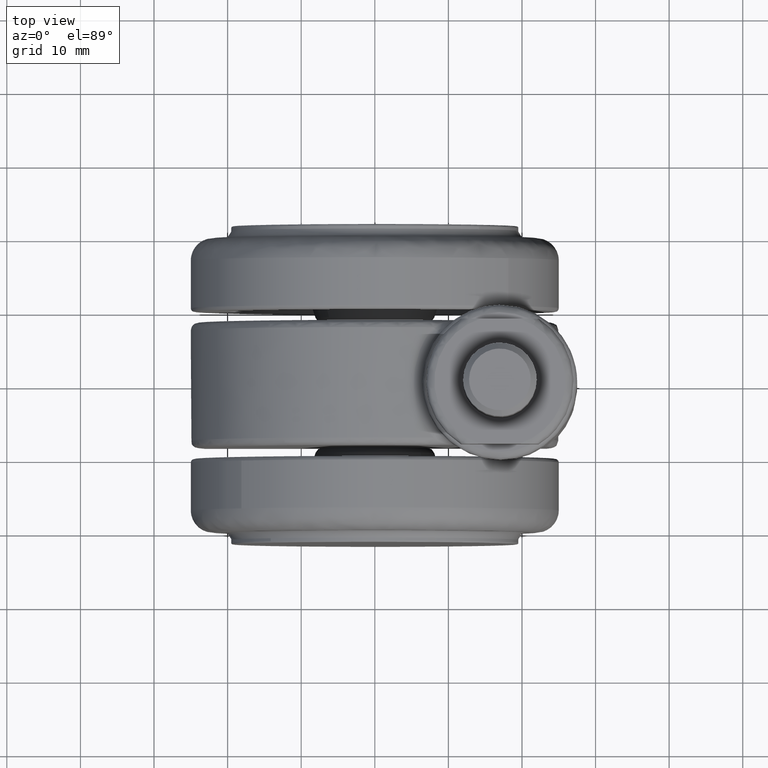
[diagram: clean part render]
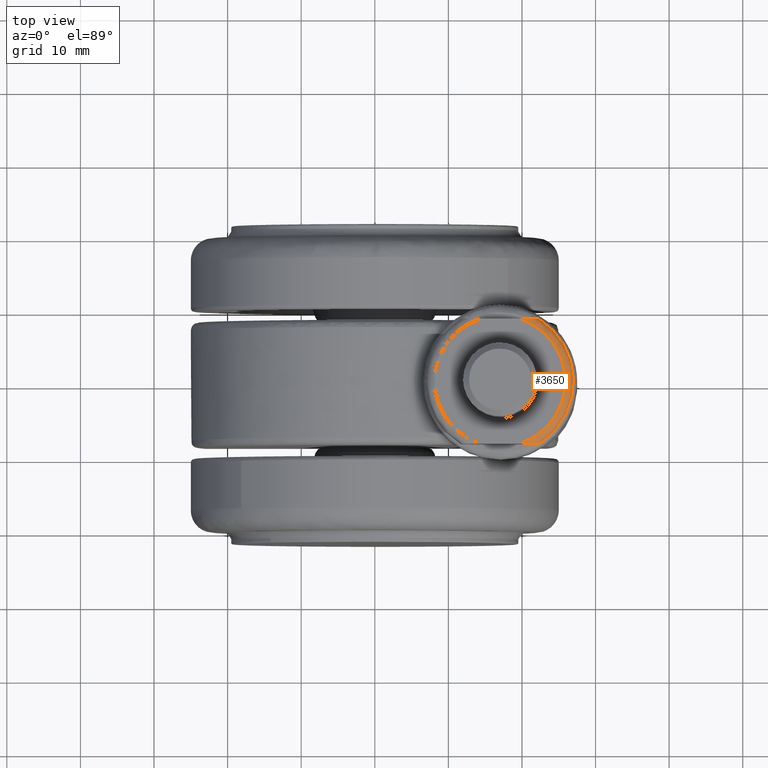
[diagram: same view with one face highlighted and labeled with its STEP entity id]
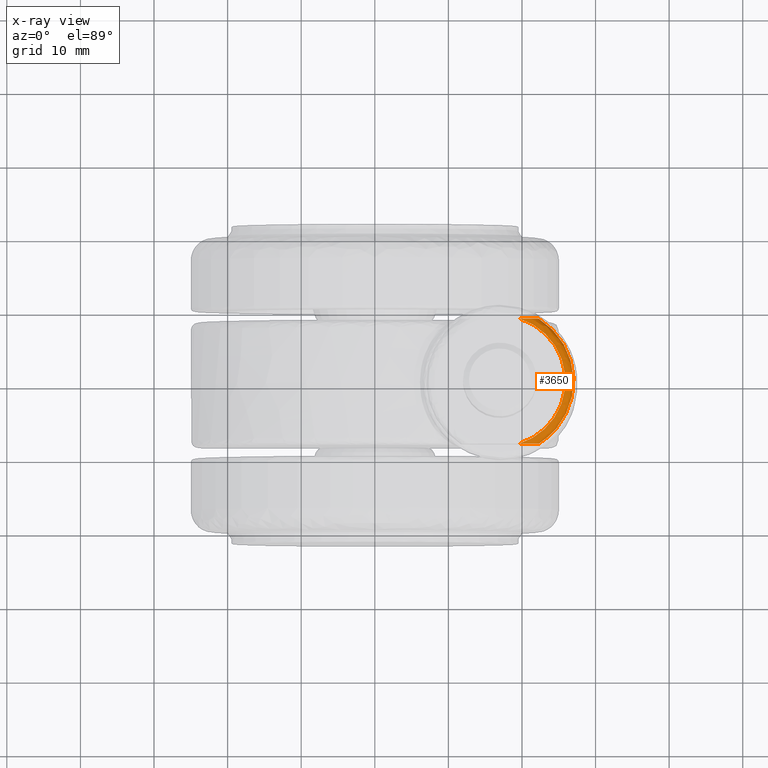
[diagram: x-ray of the same camera — body ghosted, the highlighted face saturated]
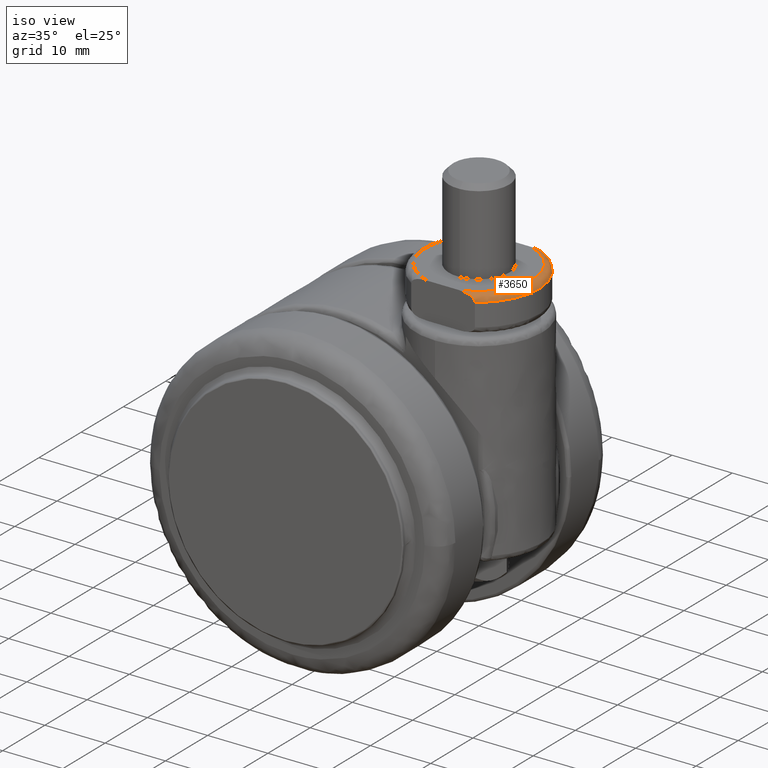
[diagram: same view with one face highlighted and labeled with its STEP entity id]
A machine part, top view. The second image highlights one B-rep face of the part: STEP entity #3650.
The next image is the same camera in x-ray: the body ghosted, the highlighted face saturated — about 0% of this face is hidden behind the body in this view.
A second angle (iso view) of the same face is appended — the face is thin or edge-on in the first view.
In plain terms, the highlighted face is a freeform B-spline surface patch.
Its self-contained STEP definition (entity closure, byte-faithful):
#3511=CARTESIAN_POINT('',(18.587621332498657,8.679293734191482,33.497322931977408));
#3512=CARTESIAN_POINT('',(25.823303305439545,7.355738683834958,33.497322931977415));
#3513=CARTESIAN_POINT('',(25.823303305439541,5.402537E-016,33.497322931977415));
#3514=CARTESIAN_POINT('',(25.823303305439538,-7.355738531814038,33.497322931977408));
#3515=CARTESIAN_POINT('',(18.587621508945787,-8.679293701915670,33.497322931977415));
#3516=CARTESIAN_POINT('',(18.814657228644290,9.920465788583154,33.585513269115147));
#3517=CARTESIAN_POINT('',(27.085069276902342,8.407637325981121,33.585513269115154));
#3518=CARTESIAN_POINT('',(27.085069276902367,6.175120E-016,33.585513269115154));
#3519=CARTESIAN_POINT('',(27.085069276902345,-8.407637152220634,33.585513269115133));
#3520=CARTESIAN_POINT('',(18.814657430324040,-9.920465751691779,33.585513269115154));
#3521=CARTESIAN_POINT('',(18.798873743139019,9.834179780675921,32.323714351406508));
#3522=CARTESIAN_POINT('',(26.997351584415259,8.334509564013972,32.323714351406501));
#3523=CARTESIAN_POINT('',(26.997351584415259,6.121410E-016,32.323714351406508));
#3524=CARTESIAN_POINT('',(26.997351584415249,-8.334509391764815,32.323714351406494));
#3525=CARTESIAN_POINT('',(18.798873943064606,-9.834179744105420,32.323714351406508));
#3533=(BOUNDED_SURFACE()B_SPLINE_SURFACE(2,2,((#3511,#3516,#3521),(#3512,#3517,#3522),(#3513,#3518,#3523),(#3514,#3519,#3524),(#3515,#3520,#3525)),.UNSPECIFIED.,.F.,.F.,.U.)B_SPLINE_SURFACE_WITH_KNOTS((3,2,3),(3,3),(0.0,14.482072543577450,28.964144860042630),(0.0,2.004607489314875),.UNSPECIFIED.)GEOMETRIC_REPRESENTATION_ITEM()RATIONAL_B_SPLINE_SURFACE(((0.891854389571714,0.586884576172750,0.896821997250981),(0.693408625558521,0.456297386752638,0.697270895065148),(0.913811094967896,0.601333181114613,0.918901000972554),(0.693408629014940,0.456297389027133,0.697270898540819),(0.891854383347541,0.586884572076934,0.896821990992139)))REPRESENTATION_ITEM('')SURFACE());
#3534=CARTESIAN_POINT('',(19.638181191654699,8.500000000000000,33.500000000000000));
#3535=VERTEX_POINT('',#3534);
#3536=CARTESIAN_POINT('',(19.638181191654699,-8.500000000000000,33.500000000000000));
#3537=VERTEX_POINT('',#3536);
#3538=CARTESIAN_POINT('',(19.638181191654699,8.500000000000000,33.500000000000000));
#3539=CARTESIAN_POINT('',(20.369110605731681,8.273397189603379,33.499999999999993));
#3540=CARTESIAN_POINT('',(21.313070798404979,7.840161561593789,33.500000000000043));
#3541=CARTESIAN_POINT('',(22.647187538468629,6.920538740679239,33.499999999999993));
#3542=CARTESIAN_POINT('',(23.623383110381749,6.015877643344505,33.499999999999993));
#3543=CARTESIAN_POINT('',(24.670482190126648,4.623729616384117,33.500000000000163));
#3544=CARTESIAN_POINT('',(25.316608653572679,3.290945612119826,33.499999999999837));
#3545=CARTESIAN_POINT('',(25.735900074926580,1.847328487616435,33.500000000000220));
#3546=CARTESIAN_POINT('',(25.917987468250718,0.590421786226538,33.499999999999837));
#3547=CARTESIAN_POINT('',(25.898200186553389,-0.737494700976362,33.500000000000128));
#3548=CARTESIAN_POINT('',(25.712988098009831,-1.932412236122028,33.499999999999709));
#3549=CARTESIAN_POINT('',(25.375638516756879,-3.093610732942128,33.500000000000377));
#3550=CARTESIAN_POINT('',(24.783871673822720,-4.413139686963725,33.499999999999893));
#3551=CARTESIAN_POINT('',(23.831243665691360,-5.805112676856552,33.500000000001101));
#3552=CARTESIAN_POINT('',(22.696841903918418,-6.888087969401386,33.499999999999197));
#3553=CARTESIAN_POINT('',(21.313514491376949,-7.841594933476014,33.500000000000377));
#3554=CARTESIAN_POINT('',(20.340984266746229,-8.282102715368149,33.499999999999723));
#3555=CARTESIAN_POINT('',(19.638181191654699,-8.500000000000000,33.500000000000000));
#3556=B_SPLINE_CURVE_WITH_KNOTS('',3,(#3538,#3539,#3540,#3541,#3542,#3543,#3544,#3545,#3546,#3547,#3548,#3549,#3550,#3551,#3552,#3553,#3554,#3555),.UNSPECIFIED.,.F.,.U.,(4,1,1,1,1,1,1,1,1,1,1,1,1,1,1,4),(0.000000085745807,2.295652161098978,3.090290516031345,4.856196293846359,6.268916321561431,8.299715201074632,9.270963421219975,10.771968858477170,12.096321378735171,13.244150882382471,14.392007672200140,15.716429986478341,17.570623139358059,19.424825814734721,20.396072529188618,22.603409302361840),.UNSPECIFIED.);
#3557=EDGE_CURVE('',#3535,#3537,#3556,.T.);
#3558=ORIENTED_EDGE('',*,*,#3557,.T.);
#3559=CARTESIAN_POINT('',(22.267826876426401,-8.500000000000000,32.399999999999999));
#3560=VERTEX_POINT('',#3559);
#3561=CARTESIAN_POINT('',(19.638181191654699,-8.500000000000000,33.500000000000000));
#3562=CARTESIAN_POINT('',(19.819294372863158,-8.500000000000002,33.499999999985711));
#3563=CARTESIAN_POINT('',(20.000012545797411,-8.500000000000000,33.496117348309511));
#3564=CARTESIAN_POINT('',(20.360165056668549,-8.499999999999996,33.475732855913378));
#3565=CARTESIAN_POINT('',(20.539605970814300,-8.499999999999998,33.459295654670257));
#3566=CARTESIAN_POINT('',(20.896513869612232,-8.499999999999998,33.407018922843037));
#3567=CARTESIAN_POINT('',(21.074005390611809,-8.500000000000000,33.371420567181488));
#3568=CARTESIAN_POINT('',(21.293837780528680,-8.500000000000000,33.306949389908773));
#3569=CARTESIAN_POINT('',(21.337699813176702,-8.500000000000000,33.293028530757041));
#3570=CARTESIAN_POINT('',(21.425177884418751,-8.500000000000002,33.262768865071472));
#3571=CARTESIAN_POINT('',(21.468667990497870,-8.500000000000000,33.246465471662098));
#3572=CARTESIAN_POINT('',(21.597074968137619,-8.499999999999998,33.193956335203602));
#3573=CARTESIAN_POINT('',(21.680398286471871,-8.499999999999998,33.154088392751071));
#3574=CARTESIAN_POINT('',(21.800623135049641,-8.499999999999998,33.084141955876412));
#3575=CARTESIAN_POINT('',(21.839851619859001,-8.499999999999998,33.059117707352982));
#3576=CARTESIAN_POINT('',(21.915053745879248,-8.499999999999998,33.005860821964049));
#3577=CARTESIAN_POINT('',(21.951186558838160,-8.499999999999998,32.977545807658082));
#3578=CARTESIAN_POINT('',(22.019943712362210,-8.499999999999998,32.916885614065507));
#3579=CARTESIAN_POINT('',(22.052575458163680,-8.500000000000000,32.884548941137460));
#3580=CARTESIAN_POINT('',(22.113435879841479,-8.499999999999998,32.814817810516992));
#3581=CARTESIAN_POINT('',(22.141765474720160,-8.500000000000002,32.777160591513919));
#3582=CARTESIAN_POINT('',(22.190703379604180,-8.500000000000002,32.698384118300957));
#3583=CARTESIAN_POINT('',(22.211598945505411,-8.500000000000000,32.657015034713403));
#3584=CARTESIAN_POINT('',(22.244633129854591,-8.499999999999996,32.569422600380733));
#3585=CARTESIAN_POINT('',(22.256249889756589,-8.500000000000002,32.524380629105238));
#3586=CARTESIAN_POINT('',(22.265586554472161,-8.500000000000000,32.455865874881972));
#3587=CARTESIAN_POINT('',(22.267366123700501,-8.500000000000000,32.432816167630527));
#3588=CARTESIAN_POINT('',(22.267801794299110,-8.500000000000000,32.406368663249111));
#3589=CARTESIAN_POINT('',(22.267827555835719,-8.500000000000000,32.403186374478089));
#3590=CARTESIAN_POINT('',(22.267826876426401,-8.500000000000000,32.399999999999999));
#3591=B_SPLINE_CURVE_WITH_KNOTS('',3,(#3561,#3562,#3563,#3564,#3565,#3566,#3567,#3568,#3569,#3570,#3571,#3572,#3573,#3574,#3575,#3576,#3577,#3578,#3579,#3580,#3581,#3582,#3583,#3584,#3585,#3586,#3587,#3588,#3589,#3590),.UNSPECIFIED.,.F.,.U.,(4,2,2,2,2,2,2,2,2,2,2,2,2,2,4),(0.0,0.031249999999991,0.062499999999982,0.093749999999973,0.101562499999971,0.109374999999968,0.124999999999964,0.132812499999961,0.140624999999959,0.148437499999956,0.156249999999954,0.164062499999951,0.171874999999949,0.175781249999947,0.176314407642874),.UNSPECIFIED.);
#3592=EDGE_CURVE('',#3537,#3560,#3591,.T.);
#3593=ORIENTED_EDGE('',*,*,#3592,.T.);
#3594=CARTESIAN_POINT('',(22.267826876426401,8.500000000000000,32.399999999999999));
#3595=VERTEX_POINT('',#3594);
#3596=CARTESIAN_POINT('',(22.267826876426401,8.500000000000000,32.399999999999999));
#3597=CARTESIAN_POINT('',(22.897614806451319,8.109868003762516,32.400000000000077));
#3598=CARTESIAN_POINT('',(23.818525604055498,7.386031324933546,32.399999999999878));
#3599=CARTESIAN_POINT('',(24.897252389309930,6.181174990818329,32.400000000000027));
#3600=CARTESIAN_POINT('',(25.600243711620941,5.151997456892014,32.400000000000311));
#3601=CARTESIAN_POINT('',(26.268464772761430,3.856751843855033,32.399999999999672));
#3602=CARTESIAN_POINT('',(26.744302245936829,2.446497823891808,32.400000000000141));
#3603=CARTESIAN_POINT('',(27.016851534342219,0.744013889104458,32.400000000000233));
#3604=CARTESIAN_POINT('',(27.010344494308299,-0.903198714894008,32.399999999999672));
#3605=CARTESIAN_POINT('',(26.713172697202459,-2.549237422885762,32.400000000001143));
#3606=CARTESIAN_POINT('',(26.168701734272151,-4.101605512247361,32.399999999999771));
#3607=CARTESIAN_POINT('',(25.442832149512370,-5.430093702030288,32.399999999998521));
#3608=CARTESIAN_POINT('',(24.495133818616232,-6.674494444558237,32.400000000002407));
#3609=CARTESIAN_POINT('',(23.468955120292581,-7.675706239568776,32.399999999997263));
#3610=CARTESIAN_POINT('',(22.650149048972370,-8.263070877320196,32.400000000001903));
#3611=CARTESIAN_POINT('',(22.267826876426401,-8.500000000000000,32.399999999999999));
#3612=B_SPLINE_CURVE_WITH_KNOTS('',3,(#3596,#3597,#3598,#3599,#3600,#3601,#3602,#3603,#3604,#3605,#3606,#3607,#3608,#3609,#3610,#3611),.UNSPECIFIED.,.F.,.U.,(4,1,1,1,1,1,1,1,1,1,1,1,1,4),(0.000000087443482,2.222463966336594,3.492456626341820,4.841816154388214,5.953056466112429,7.858055590968174,9.286778425751137,11.112334608801500,12.779219836899189,14.287328042890000,16.033565516343248,17.303562806510570,18.970402239335250,20.319759216059872),.UNSPECIFIED.);
#3613=EDGE_CURVE('',#3595,#3560,#3612,.T.);
#3614=ORIENTED_EDGE('',*,*,#3613,.F.);
#3615=CARTESIAN_POINT('',(22.267826876426401,8.500000000000000,32.399999999999999));
#3616=CARTESIAN_POINT('',(22.267827511729120,8.500000000000000,32.410532627479533));
#3617=CARTESIAN_POINT('',(22.267543647990280,8.500000000000000,32.421051208579428));
#3618=CARTESIAN_POINT('',(22.264439141995599,8.500000000000002,32.478146581404843));
#3619=CARTESIAN_POINT('',(22.256336088816699,8.500000000000002,32.523953647868517));
#3620=CARTESIAN_POINT('',(22.236344710736748,8.500000000000000,32.591468994513612));
#3621=CARTESIAN_POINT('',(22.228358089610602,8.499999999999998,32.613746975414820));
#3622=CARTESIAN_POINT('',(22.210281960022019,8.500000000000002,32.656933432088451));
#3623=CARTESIAN_POINT('',(22.200156232647110,8.500000000000000,32.677977107869467));
#3624=CARTESIAN_POINT('',(22.166806220450230,8.500000000000000,32.739606082652209));
#3625=CARTESIAN_POINT('',(22.140371612250139,8.500000000000002,32.778963178361018));
#3626=CARTESIAN_POINT('',(22.082425731231890,8.499999999999998,32.852151114619417));
#3627=CARTESIAN_POINT('',(22.050855106643521,8.499999999999996,32.886212133546813));
#3628=CARTESIAN_POINT('',(21.983545437034980,8.500000000000002,32.950269628953968));
#3629=CARTESIAN_POINT('',(21.947728350745312,8.500000000000000,32.980310022340007));
#3630=CARTESIAN_POINT('',(21.872844526898430,8.500000000000000,33.036717624212109));
#3631=CARTESIAN_POINT('',(21.834254209839258,8.499999999999998,33.062742935964302));
#3632=CARTESIAN_POINT('',(21.715715075531399,8.500000000000000,33.135567713053121));
#3633=CARTESIAN_POINT('',(21.633030704673100,8.500000000000000,33.177177917418213));
#3634=CARTESIAN_POINT('',(21.462386278834700,8.499999999999998,33.250390515804050));
#3635=CARTESIAN_POINT('',(21.374131792486619,8.500000000000000,33.281983120571347));
#3636=CARTESIAN_POINT('',(21.108224087346130,8.499999999999998,33.363515575781712));
#3637=CARTESIAN_POINT('',(20.927750763652220,8.499999999999998,33.401310932275187));
#3638=CARTESIAN_POINT('',(20.654134111905240,8.500000000000000,33.442969462979747));
#3639=CARTESIAN_POINT('',(20.562427895770561,8.500000000000000,33.454265986397367));
#3640=CARTESIAN_POINT('',(20.378206221759228,8.500000000000000,33.472673293497422));
#3641=CARTESIAN_POINT('',(20.285578733793141,8.500000000000000,33.479784587442573));
#3642=CARTESIAN_POINT('',(20.008003142707281,8.500000000000002,33.495971545967443));
#3643=CARTESIAN_POINT('',(19.823060172416021,8.500000000000004,33.499999999981547));
#3644=CARTESIAN_POINT('',(19.638181191654699,8.500000000000000,33.500000000000000));
#3645=B_SPLINE_CURVE_WITH_KNOTS('',3,(#3615,#3616,#3617,#3618,#3619,#3620,#3621,#3622,#3623,#3624,#3625,#3626,#3627,#3628,#3629,#3630,#3631,#3632,#3633,#3634,#3635,#3636,#3637,#3638,#3639,#3640,#3641,#3642,#3643,#3644),.UNSPECIFIED.,.F.,.U.,(4,2,2,2,2,2,2,2,2,2,2,2,2,2,4),(0.826376939406728,0.828125000000059,0.835937500000057,0.839843750000056,0.843750000000054,0.851562500000052,0.859375000000050,0.867187500000048,0.875000000000045,0.890625000000040,0.906250000000035,0.937500000000024,0.953125000000018,0.968750000000012,1.0),.UNSPECIFIED.);
#3646=EDGE_CURVE('',#3595,#3535,#3645,.T.);
#3647=ORIENTED_EDGE('',*,*,#3646,.T.);
#3648=EDGE_LOOP('',(#3558,#3593,#3614,#3647));
#3649=FACE_OUTER_BOUND('',#3648,.T.);
#3650=ADVANCED_FACE('',(#3649),#3533,.T.);